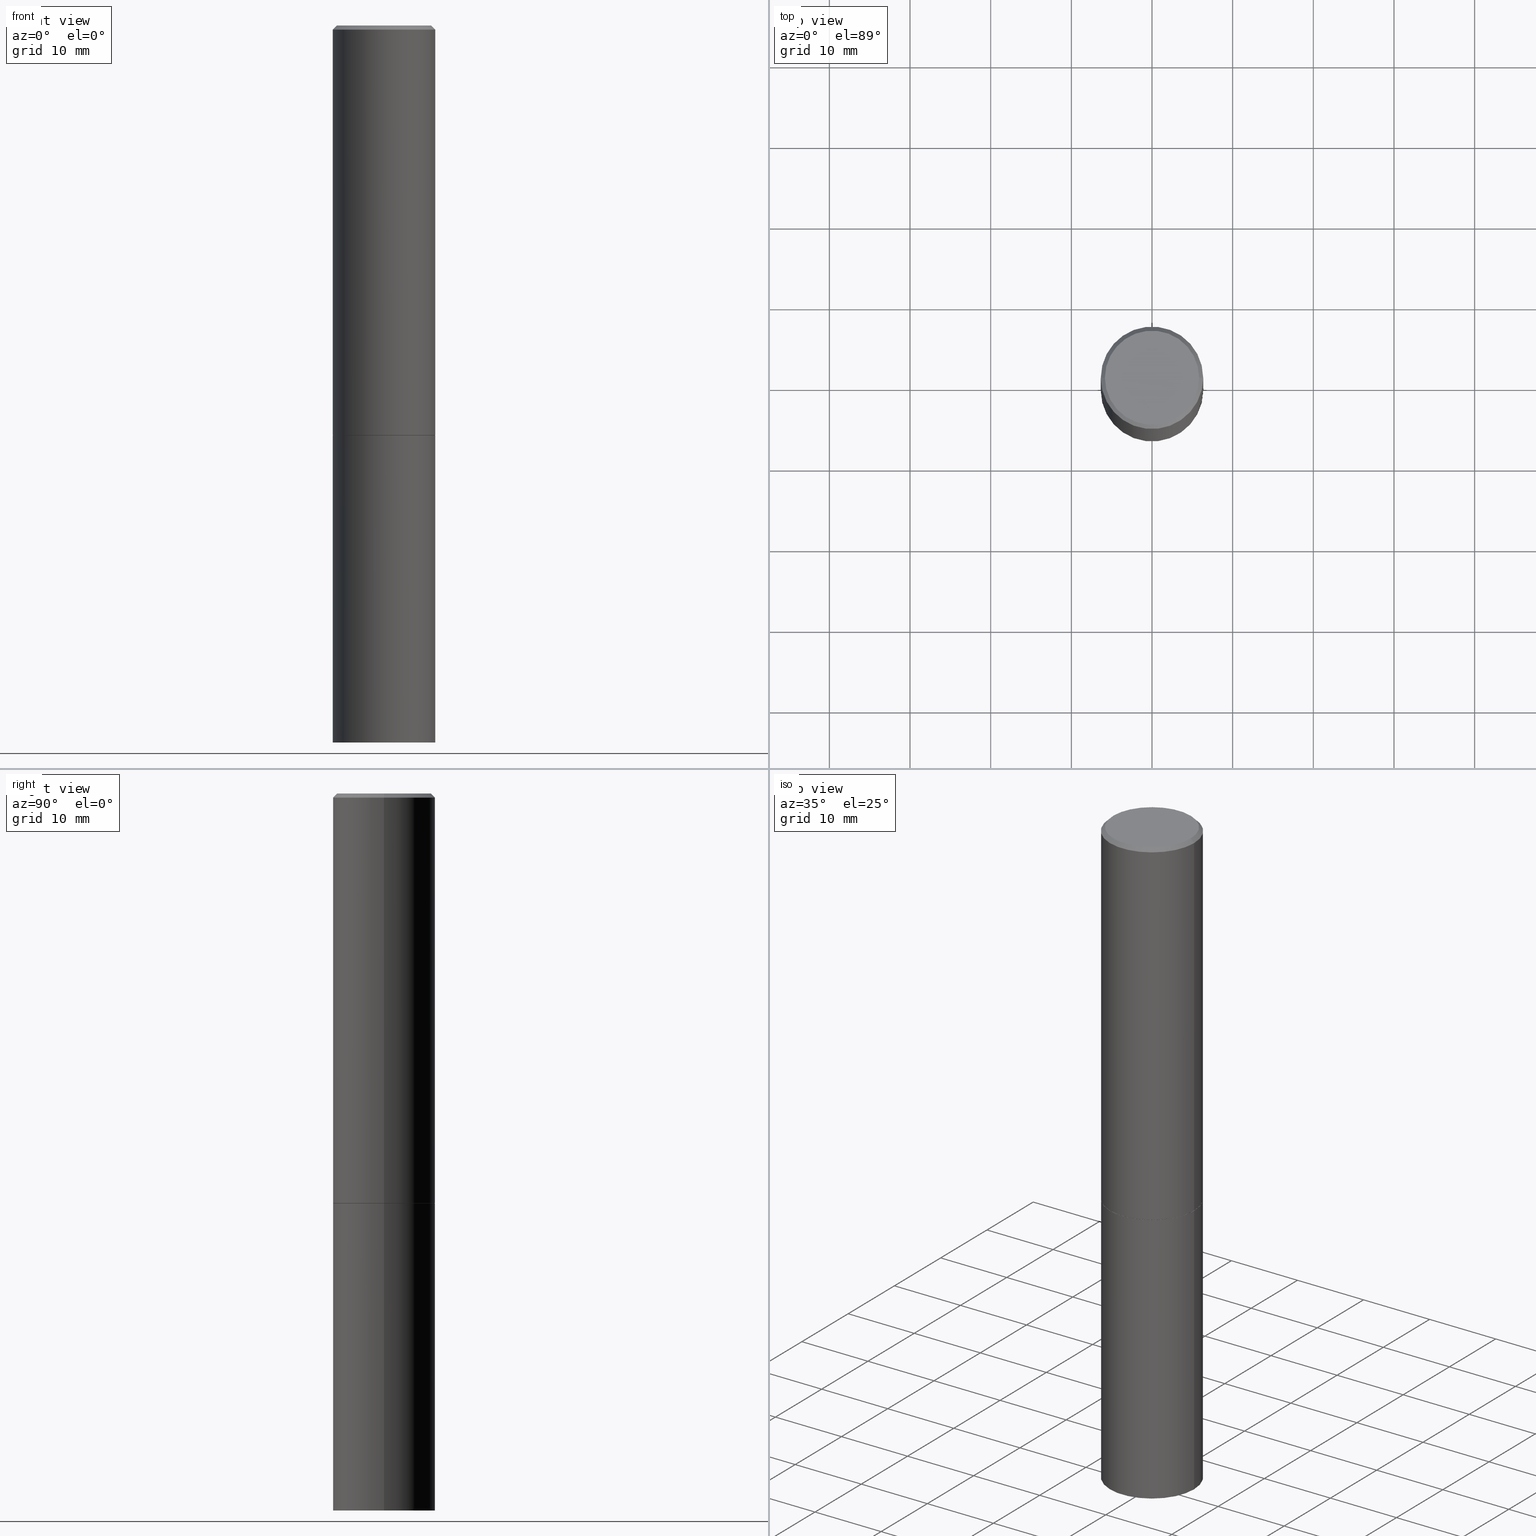
[diagram: canonical four-view strip — front | top / right | iso, engineering-drawing reading convention]
A machine part, canonical four-view strip (front | top / right | iso — engineering-drawing reading convention). The complete STEP part file that produces these views, byte-faithful:
ISO-10303-21;
HEADER;
FILE_DESCRIPTION (( 'STEP AP203' ),
    '1' );
FILE_NAME ('72976.STEP',
    '2024-02-29T06:10:43',
    ( '' ),
    ( '' ),
    'SwSTEP 2.0',
    'SolidWorks 2023',
    '' );
FILE_SCHEMA (( 'CONFIG_CONTROL_DESIGN' ));
ENDSEC;

DATA;
#1 = CARTESIAN_POINT ( 'NONE',  ( 4.888492143564087030E-29, -6.979471196347446580E-15, -1.998999999999999666 ) ) ;
#2 = AXIS2_PLACEMENT_3D ( 'NONE', #68, #78, #15 ) ;
#3 = DIRECTION ( 'NONE',  ( 2.438088387897960049E-29, -3.491481338843145188E-15, -1.000000000000000000 ) ) ;
#4 = APPROVAL ( #194, 'UNSPECIFIED' ) ;
#5 = PLANE ( 'NONE',  #163 ) ;
#6 = ORIENTED_EDGE ( 'NONE', *, *, #35, .F. ) ;
#7 = CIRCLE ( 'NONE', #300, 0.2500000000000000000 ) ;
#8 = PLANE ( 'NONE',  #197 ) ;
#9 = ORIENTED_EDGE ( 'NONE', *, *, #225, .T. ) ;
#10 = DIRECTION ( 'NONE',  ( 1.000000000000000000, -6.982962677686265922E-15, 4.876176775795935793E-29 ) ) ;
#11 = CYLINDRICAL_SURFACE ( 'NONE', #164, 0.2499999999999998890 ) ;
#12 = EDGE_LOOP ( 'NONE', ( #23, #355 ) ) ;
#13 = FACE_OUTER_BOUND ( 'NONE', #148, .T. ) ;
#14 = AXIS2_PLACEMENT_3D ( 'NONE', #268, #319, #177 ) ;
#15 = DIRECTION ( 'NONE',  ( 1.000000000000000000, 0.000000000000000000, 0.000000000000000000 ) ) ;
#16 = FACE_OUTER_BOUND ( 'NONE', #151, .T. ) ;
#17 = COORDINATED_UNIVERSAL_TIME_OFFSET ( 5, 0, .BEHIND. ) ;
#18 = VERTEX_POINT ( 'NONE', #112 ) ;
#19 = COORDINATED_UNIVERSAL_TIME_OFFSET ( 5, 0, .BEHIND. ) ;
#20 = EDGE_LOOP ( 'NONE', ( #139, #33 ) ) ;
#21 = APPROVAL ( #253, 'UNSPECIFIED' ) ;
#22 = PERSON_AND_ORGANIZATION ( #303, #52 ) ;
#23 = ORIENTED_EDGE ( 'NONE', *, *, #66, .T. ) ;
#24 = EDGE_LOOP ( 'NONE', ( #308, #109, #306, #75 ) ) ;
#25 = ADVANCED_FACE ( 'NONE', ( #162 ), #166, .T. ) ;
#26 = DIRECTION ( 'NONE',  ( 1.000000000000000000, -6.982962677686266711E-15, 4.876176775795935793E-29 ) ) ;
#27 = APPROVAL_PERSON_ORGANIZATION ( #332, #61, #74 ) ;
#28 = DIRECTION ( 'NONE',  ( 1.000000000000000000, -6.982962677686266711E-15, 0.000000000000000000 ) ) ;
#29 = DIRECTION ( 'NONE',  ( -1.000000000000000000, 6.982962677686265922E-15, -4.876176775795935793E-29 ) ) ;
#30 = CARTESIAN_POINT ( 'NONE',  ( 0.2500000000000000000, -8.725211865769012469E-15, -1.998999999999999666 ) ) ;
#31 = CONICAL_SURFACE ( 'NONE', #14, 0.2489999999999999991, 0.7853981633975507526 ) ;
#32 = DIRECTION ( 'NONE',  ( -1.000000000000000000, 6.982962677686265922E-15, -4.876176775795935793E-29 ) ) ;
#33 = ORIENTED_EDGE ( 'NONE', *, *, #130, .F. ) ;
#34 = DIRECTION ( 'NONE',  ( -2.438088387897960049E-29, 3.491481338843145188E-15, 1.000000000000000000 ) ) ;
#35 = EDGE_CURVE ( 'NONE', #155, #82, #338, .T. ) ;
#36 = VERTEX_POINT ( 'NONE', #276 ) ;
#37 = CIRCLE ( 'NONE', #182, 0.2499999999999998057 ) ;
#38 = DIRECTION ( 'NONE',  ( 1.000000000000000000, -6.982962677686266711E-15, 4.876176775795935793E-29 ) ) ;
#39 = APPLICATION_CONTEXT ( 'configuration controlled 3d designs of mechanical parts and assemblies' ) ;
#40 = FACE_OUTER_BOUND ( 'NONE', #360, .T. ) ;
#41 = ORIENTED_EDGE ( 'NONE', *, *, #328, .T. ) ;
#42 = EDGE_CURVE ( 'NONE', #96, #271, #279, .T. ) ;
#43 = LOCAL_TIME ( 1, 10, 43.00000000000000000, #19 ) ;
#44 = CARTESIAN_POINT ( 'NONE',  ( 0.2499999999999998057, -1.784954126219744611E-15, -0.02000000000000003164 ) ) ;
#45 = APPROVAL_ROLE ( '' ) ;
#46 = EDGE_LOOP ( 'NONE', ( #178, #254, #220, #199 ) ) ;
#47 = PERSON_AND_ORGANIZATION_ROLE ( 'design_supplier' ) ;
#48 = ADVANCED_FACE ( 'NONE', ( #16 ), #222, .T. ) ;
#49 = ORIENTED_EDGE ( 'NONE', *, *, #236, .F. ) ;
#50 = APPROVAL_ROLE ( '' ) ;
#51 = ORIENTED_EDGE ( 'NONE', *, *, #111, .T. ) ;
#52 = ORGANIZATION ( 'UNSPECIFIED', 'UNSPECIFIED', '' ) ;
#53 = ORIENTED_EDGE ( 'NONE', *, *, #322, .T. ) ;
#54 = EDGE_CURVE ( 'NONE', #36, #274, #331, .T. ) ;
#55 = LINE ( 'NONE', #87, #330 ) ;
#56 = DIRECTION ( 'NONE',  ( -2.445468806185136877E-29, 3.491481338843145188E-15, 1.000000000000000000 ) ) ;
#57 = AXIS2_PLACEMENT_3D ( 'NONE', #231, #304, #357 ) ;
#58 = AXIS2_PLACEMENT_3D ( 'NONE', #154, #242, #124 ) ;
#59 = DIRECTION ( 'NONE',  ( 1.000000000000000000, -6.982962677686270655E-15, 0.000000000000000000 ) ) ;
#60 = FACE_OUTER_BOUND ( 'NONE', #361, .T. ) ;
#61 = APPROVAL ( #221, 'UNSPECIFIED' ) ;
#62 = DIRECTION ( 'NONE',  ( -2.445468806185136597E-29, 3.491481338843145583E-15, 1.000000000000000000 ) ) ;
#63 = VECTOR ( 'NONE', #333, 39.37007874015748143 ) ;
#64 = AXIS2_PLACEMENT_3D ( 'NONE', #121, #339, #200 ) ;
#65 = CARTESIAN_POINT ( 'NONE',  ( 4.890937612370272073E-29, -6.982962677686288799E-15, -1.999999999999999334 ) ) ;
#66 = EDGE_CURVE ( 'NONE', #215, #86, #270, .T. ) ;
#67 = DIRECTION ( 'NONE',  ( 1.000000000000000000, -6.982962677686266711E-15, 0.000000000000000000 ) ) ;
#68 = CARTESIAN_POINT ( 'NONE',  ( 0.000000000000000000, 0.000000000000000000, 0.000000000000000000 ) ) ;
#69 = CONICAL_SURFACE ( 'NONE', #321, 0.2499999999999998057, 0.7853981633974480570 ) ;
#70 = CIRCLE ( 'NONE', #294, 0.2499999999999998057 ) ;
#71 = APPLICATION_PROTOCOL_DEFINITION ( 'international standard', 'config_control_design', 1994, #363 ) ;
#72 = ORIENTED_EDGE ( 'NONE', *, *, #322, .F. ) ;
#73 = LINE ( 'NONE', #184, #134 ) ;
#74 = APPROVAL_ROLE ( '' ) ;
#75 = ORIENTED_EDGE ( 'NONE', *, *, #105, .F. ) ;
#76 = VECTOR ( 'NONE', #205, 39.37007874015748143 ) ;
#77 = VECTOR ( 'NONE', #56, 39.37007874015748143 ) ;
#78 = DIRECTION ( 'NONE',  ( 0.000000000000000000, 0.000000000000000000, 1.000000000000000000 ) ) ;
#79 = ORIENTED_EDGE ( 'NONE', *, *, #116, .F. ) ;
#80 = EDGE_CURVE ( 'NONE', #36, #96, #256, .T. ) ;
#81 = PERSON_AND_ORGANIZATION_ROLE ( 'creator' ) ;
#82 = VERTEX_POINT ( 'NONE', #283 ) ;
#83 = PERSON_AND_ORGANIZATION ( #303, #52 ) ;
#84 = VERTEX_POINT ( 'NONE', #206 ) ;
#85 = PERSON_AND_ORGANIZATION ( #303, #52 ) ;
#86 = VERTEX_POINT ( 'NONE', #346 ) ;
#87 = CARTESIAN_POINT ( 'NONE',  ( 0.2499999999999998890, -1.745740669421565889E-15, 1.219044193948983388E-29 ) ) ;
#88 = FACE_OUTER_BOUND ( 'NONE', #290, .T. ) ;
#89 = CARTESIAN_POINT ( 'NONE',  ( 0.2299999999999997602, -1.681434332853597631E-15, 4.268512490111905999E-18 ) ) ;
#90 = CIRCLE ( 'NONE', #58, 0.2299999999999997602 ) ;
#91 = CARTESIAN_POINT ( 'NONE',  ( -1.043851414335219820E-46, 1.490343170380447200E-32, 4.268512490100411279E-18 ) ) ;
#92 = DIMENSIONAL_EXPONENTS ( 1.000000000000000000, 0.000000000000000000, 0.000000000000000000, 0.000000000000000000, 0.000000000000000000, 0.000000000000000000, 0.000000000000000000 ) ;
#93 = DIRECTION ( 'NONE',  ( -2.445468806185136597E-29, 3.491481338843145583E-15, 1.000000000000000000 ) ) ;
#94 =( NAMED_UNIT ( * ) SI_UNIT ( $, .STERADIAN. ) SOLID_ANGLE_UNIT ( ) );
#95 = ADVANCED_FACE ( 'NONE', ( #233 ), #282, .T. ) ;
#96 = VERTEX_POINT ( 'NONE', #89 ) ;
#97 =( NAMED_UNIT ( * ) PLANE_ANGLE_UNIT ( ) SI_UNIT ( $, .RADIAN. ) );
#98 = UNCERTAINTY_MEASURE_WITH_UNIT (LENGTH_MEASURE( 1.000000000000000082E-05 ), #347, 'distance_accuracy_value', 'NONE');
#99 = DIRECTION ( 'NONE',  ( -2.445468806185136597E-29, 3.491481338843145583E-15, 1.000000000000000000 ) ) ;
#100 = LOCAL_TIME ( 1, 10, 43.00000000000000000, #17 ) ;
#101 = CARTESIAN_POINT ( 'NONE',  ( 4.890937612370280165E-31, -6.982962677686301470E-17, -0.02000000000000003164 ) ) ;
#102 = PERSON_AND_ORGANIZATION ( #303, #52 ) ;
#103 = COORDINATED_UNIVERSAL_TIME_OFFSET ( 5, 0, .BEHIND. ) ;
#104 = ORIENTED_EDGE ( 'NONE', *, *, #176, .T. ) ;
#105 = EDGE_CURVE ( 'NONE', #155, #271, #55, .T. ) ;
#106 = AXIS2_PLACEMENT_3D ( 'NONE', #207, #202, #59 ) ;
#107 = COORDINATED_UNIVERSAL_TIME_OFFSET ( 5, 0, .BEHIND. ) ;
#108 = ORIENTED_EDGE ( 'NONE', *, *, #208, .T. ) ;
#109 = ORIENTED_EDGE ( 'NONE', *, *, #212, .T. ) ;
#110 = ORIENTED_EDGE ( 'NONE', *, *, #341, .F. ) ;
#111 = EDGE_CURVE ( 'NONE', #18, #155, #237, .T. ) ;
#112 = CARTESIAN_POINT ( 'NONE',  ( 0.2489999999999999991, -8.721720384430169462E-15, -1.999999999999999334 ) ) ;
#113 = CONICAL_SURFACE ( 'NONE', #123, 0.2489999999999999991, 0.7853981633975507526 ) ;
#114 = DIRECTION ( 'NONE',  ( 1.000000000000000000, -6.982962677686266711E-15, 0.000000000000000000 ) ) ;
#115 = DIRECTION ( 'NONE',  ( 1.000000000000000000, -6.982962677686266711E-15, 0.000000000000000000 ) ) ;
#116 = EDGE_CURVE ( 'NONE', #327, #215, #169, .T. ) ;
#117 = CYLINDRICAL_SURFACE ( 'NONE', #234, 0.2499999999999998890 ) ;
#118 = AXIS2_PLACEMENT_3D ( 'NONE', #173, #174, #32 ) ;
#119 = LOCAL_TIME ( 1, 10, 43.00000000000000000, #107 ) ;
#120 = DIRECTION ( 'NONE',  ( -1.000000000000000000, 6.982962677686266711E-15, 0.000000000000000000 ) ) ;
#121 = CARTESIAN_POINT ( 'NONE',  ( 8.559140821647976968E-29, -1.222018468595100934E-14, -3.500000000000000000 ) ) ;
#122 = VECTOR ( 'NONE', #315, 39.37007874015748143 ) ;
#123 = AXIS2_PLACEMENT_3D ( 'NONE', #352, #153, #291 ) ;
#124 = DIRECTION ( 'NONE',  ( 1.000000000000000000, -6.982962677686267499E-15, 4.876225828469313926E-29 ) ) ;
#125 = LENGTH_MEASURE_WITH_UNIT ( LENGTH_MEASURE( 0.02539999999999999897 ), #238 );
#126 = CC_DESIGN_DATE_AND_TIME_ASSIGNMENT ( #245, #305, ( #152 ) ) ;
#127 = DIRECTION ( 'NONE',  ( 1.000000000000000000, -6.982962677686266711E-15, 0.000000000000000000 ) ) ;
#128 = APPROVAL_PERSON_ORGANIZATION ( #198, #21, #45 ) ;
#129 = DATE_AND_TIME ( #132, #204 ) ;
#130 = EDGE_CURVE ( 'NONE', #191, #327, #170, .T. ) ;
#131 = DIRECTION ( 'NONE',  ( -2.445468806185136597E-29, 3.491481338843145583E-15, 1.000000000000000000 ) ) ;
#132 = CALENDAR_DATE ( 2024, 29, 2 ) ;
#133 = ORIENTED_EDGE ( 'NONE', *, *, #225, .F. ) ;
#134 = VECTOR ( 'NONE', #239, 39.37007874015748143 ) ;
#135 = COORDINATED_UNIVERSAL_TIME_OFFSET ( 5, 0, .BEHIND. ) ;
#136 = EDGE_LOOP ( 'NONE', ( #298, #108, #51, #133 ) ) ;
#137 = ORIENTED_EDGE ( 'NONE', *, *, #54, .F. ) ;
#138 = CC_DESIGN_DATE_AND_TIME_ASSIGNMENT ( #244, #192, ( #261 ) ) ;
#139 = ORIENTED_EDGE ( 'NONE', *, *, #201, .F. ) ;
#140 =( GEOMETRIC_REPRESENTATION_CONTEXT ( 3 ) GLOBAL_UNCERTAINTY_ASSIGNED_CONTEXT ( ( #98 ) ) GLOBAL_UNIT_ASSIGNED_CONTEXT ( ( #347, #97, #94 ) ) REPRESENTATION_CONTEXT ( 'NONE', 'WORKASPACE' ) );
#141 = CARTESIAN_POINT ( 'NONE',  ( -0.2489999999999999991, -5.213711265643639342E-15, -1.999999999999999334 ) ) ;
#142 = CARTESIAN_POINT ( 'NONE',  ( 1.745740669421615390E-15, 0.2499999999999930334, -2.000000000000000444 ) ) ;
#143 = ADVANCED_FACE ( 'NONE', ( #60 ), #366, .F. ) ;
#144 = CARTESIAN_POINT ( 'NONE',  ( -0.2499999999999998890, 1.776356839400249676E-15, -1.229733772563726025E-29 ) ) ;
#145 = DIRECTION ( 'NONE',  ( -1.000000000000000000, 6.982962677686266711E-15, 0.000000000000000000 ) ) ;
#146 = CC_DESIGN_SECURITY_CLASSIFICATION ( #261, ( #364 ) ) ;
#147 = LINE ( 'NONE', #141, #249 ) ;
#148 = EDGE_LOOP ( 'NONE', ( #110, #255 ) ) ;
#149 = AXIS2_PLACEMENT_3D ( 'NONE', #91, #62, #340 ) ;
#150 = AXIS2_PLACEMENT_3D ( 'NONE', #365, #232, #28 ) ;
#151 = EDGE_LOOP ( 'NONE', ( #280, #53, #158, #79 ) ) ;
#152 = PRODUCT_DEFINITION ( 'UNKNOWN', '', #364, #292 ) ;
#153 = DIRECTION ( 'NONE',  ( -2.445468806185136597E-29, 3.491481338843145583E-15, 1.000000000000000000 ) ) ;
#154 = CARTESIAN_POINT ( 'NONE',  ( -1.043851414335219820E-46, 1.490343170380447200E-32, 4.268512490100411279E-18 ) ) ;
#155 = VERTEX_POINT ( 'NONE', #30 ) ;
#156 = CC_DESIGN_APPROVAL ( #21, ( #152 ) ) ;
#157 = ADVANCED_FACE ( 'NONE', ( #88 ), #117, .T. ) ;
#158 = ORIENTED_EDGE ( 'NONE', *, *, #66, .F. ) ;
#159 = SECURITY_CLASSIFICATION_LEVEL ( 'unclassified' ) ;
#160 = CARTESIAN_POINT ( 'NONE',  ( 4.890937612370272633E-29, -6.982962677686290376E-15, -1.999999999999999778 ) ) ;
#161 = MECHANICAL_CONTEXT ( 'NONE', #363, 'mechanical' ) ;
#162 = FACE_OUTER_BOUND ( 'NONE', #20, .T. ) ;
#163 = AXIS2_PLACEMENT_3D ( 'NONE', #142, #3, #29 ) ;
#164 = AXIS2_PLACEMENT_3D ( 'NONE', #211, #349, #38 ) ;
#165 = PERSON_AND_ORGANIZATION_ROLE ( 'design_owner' ) ;
#166 = PLANE ( 'NONE',  #344 ) ;
#167 = CC_DESIGN_PERSON_AND_ORGANIZATION_ASSIGNMENT ( #22, #272, ( #261 ) ) ;
#168 = EDGE_LOOP ( 'NONE', ( #310, #104, #6, #295 ) ) ;
#169 = LINE ( 'NONE', #286, #122 ) ;
#170 = CIRCLE ( 'NONE', #106, 0.2500000000000000000 ) ;
#171 = ADVANCED_FACE ( 'NONE', ( #259 ), #69, .T. ) ;
#172 = DIRECTION ( 'NONE',  ( -2.445468806185136597E-29, 3.491481338843145583E-15, 1.000000000000000000 ) ) ;
#173 = CARTESIAN_POINT ( 'NONE',  ( 1.606081415867839490E-15, 0.2299999999999997602, -8.009064516888724897E-16 ) ) ;
#174 = DIRECTION ( 'NONE',  ( 2.438088387897960049E-29, -3.491481338843145188E-15, -1.000000000000000000 ) ) ;
#175 = DIRECTION ( 'NONE',  ( -2.445468806185136877E-29, 3.491481338843145188E-15, 1.000000000000000000 ) ) ;
#176 = EDGE_CURVE ( 'NONE', #84, #82, #147, .T. ) ;
#177 = DIRECTION ( 'NONE',  ( 1.000000000000000000, -6.982962677686266711E-15, 0.000000000000000000 ) ) ;
#178 = ORIENTED_EDGE ( 'NONE', *, *, #42, .F. ) ;
#179 = CARTESIAN_POINT ( 'NONE',  ( 0.2500000000000000000, -1.396592535537257602E-14, -3.500000000000000000 ) ) ;
#180 = CARTESIAN_POINT ( 'NONE',  ( 0.2499999999999998057, -1.784954126219744611E-15, -0.02000000000000003164 ) ) ;
#181 = ADVANCED_FACE ( 'NONE', ( #263 ), #5, .F. ) ;
#182 = AXIS2_PLACEMENT_3D ( 'NONE', #318, #293, #187 ) ;
#183 = MANIFOLD_SOLID_BREP ( 'Body-Move/Copy2[2]', #277 ) ;
#184 = CARTESIAN_POINT ( 'NONE',  ( -0.2500000000000000000, 1.776356839400250465E-15, -1.229733772563726445E-29 ) ) ;
#185 = ORIENTED_EDGE ( 'NONE', *, *, #80, .T. ) ;
#186 = MANIFOLD_SOLID_BREP ( 'Body-Move/Copy2[1]', #229 ) ;
#187 = DIRECTION ( 'NONE',  ( 1.000000000000000000, -6.982962677686266711E-15, 0.000000000000000000 ) ) ;
#188 = CARTESIAN_POINT ( 'NONE',  ( 0.000000000000000000, 0.000000000000000000, 0.000000000000000000 ) ) ;
#189 = VECTOR ( 'NONE', #354, 39.37007874015748143 ) ;
#190 = DATE_AND_TIME ( #227, #119 ) ;
#191 = VERTEX_POINT ( 'NONE', #258 ) ;
#192 = DATE_TIME_ROLE ( 'classification_date' ) ;
#193 = ORIENTED_EDGE ( 'NONE', *, *, #105, .T. ) ;
#194 = APPROVAL_STATUS ( 'not_yet_approved' ) ;
#195 = CC_DESIGN_PERSON_AND_ORGANIZATION_ASSIGNMENT ( #85, #329, ( #152 ) ) ;
#196 = ORIENTED_EDGE ( 'NONE', *, *, #314, .F. ) ;
#197 = AXIS2_PLACEMENT_3D ( 'NONE', #65, #34, #10 ) ;
#198 = PERSON_AND_ORGANIZATION ( #303, #52 ) ;
#199 = ORIENTED_EDGE ( 'NONE', *, *, #314, .T. ) ;
#200 = DIRECTION ( 'NONE',  ( 1.000000000000000000, -6.982962677686270655E-15, 0.000000000000000000 ) ) ;
#201 = EDGE_CURVE ( 'NONE', #327, #191, #217, .T. ) ;
#202 = DIRECTION ( 'NONE',  ( -2.445468806185136597E-29, 3.491481338843145583E-15, 1.000000000000000000 ) ) ;
#203 = PRODUCT_DEFINITION_SHAPE ( 'NONE', 'NONE',  #152 ) ;
#204 = LOCAL_TIME ( 1, 10, 43.00000000000000000, #135 ) ;
#205 = DIRECTION ( 'NONE',  ( 0.7071067811866199593, -2.468850131083015945E-15, 0.7071067811864750752 ) ) ;
#206 = CARTESIAN_POINT ( 'NONE',  ( -0.2489999999999999991, -5.208412811295418518E-15, -1.999999999999999334 ) ) ;
#207 = CARTESIAN_POINT ( 'NONE',  ( 8.559140821647976968E-29, -1.222018468595100934E-14, -3.500000000000000000 ) ) ;
#208 = EDGE_CURVE ( 'NONE', #84, #18, #230, .T. ) ;
#209 = FACE_OUTER_BOUND ( 'NONE', #136, .T. ) ;
#210 = CC_DESIGN_APPROVAL ( #61, ( #364 ) ) ;
#211 = CARTESIAN_POINT ( 'NONE',  ( 0.000000000000000000, 0.000000000000000000, 0.000000000000000000 ) ) ;
#212 = EDGE_CURVE ( 'NONE', #82, #274, #313, .T. ) ;
#213 = CARTESIAN_POINT ( 'NONE',  ( 0.000000000000000000, 0.000000000000000000, 0.000000000000000000 ) ) ;
#214 = DIRECTION ( 'NONE',  ( -2.445468806185136597E-29, 3.491481338843145583E-15, 1.000000000000000000 ) ) ;
#215 = VERTEX_POINT ( 'NONE', #260 ) ;
#216 = AXIS2_PLACEMENT_3D ( 'NONE', #160, #93, #114 ) ;
#217 = CIRCLE ( 'NONE', #64, 0.2500000000000000000 ) ;
#218 = DIRECTION ( 'NONE',  ( -2.445468806185136597E-29, 3.491481338843145583E-15, 1.000000000000000000 ) ) ;
#219 = CALENDAR_DATE ( 2024, 29, 2 ) ;
#220 = ORIENTED_EDGE ( 'NONE', *, *, #54, .T. ) ;
#221 = APPROVAL_STATUS ( 'not_yet_approved' ) ;
#222 = CYLINDRICAL_SURFACE ( 'NONE', #362, 0.2500000000000000000 ) ;
#223 = CALENDAR_DATE ( 2024, 29, 2 ) ;
#224 = CARTESIAN_POINT ( 'NONE',  ( 1.745740669421652072E-15, 0.2499999999999877598, -3.500000000000000888 ) ) ;
#225 = EDGE_CURVE ( 'NONE', #82, #155, #7, .T. ) ;
#226 = DIRECTION ( 'NONE',  ( 2.438088387897960049E-29, -3.491481338843145188E-15, -1.000000000000000000 ) ) ;
#227 = CALENDAR_DATE ( 2024, 29, 2 ) ;
#228 = ORIENTED_EDGE ( 'NONE', *, *, #42, .T. ) ;
#229 = CLOSED_SHELL ( 'NONE', ( #48, #25, #181, #250 ) ) ;
#230 = CIRCLE ( 'NONE', #150, 0.2489999999999999991 ) ;
#231 = CARTESIAN_POINT ( 'NONE',  ( 4.888492143564087030E-29, -6.979471196347446580E-15, -1.998999999999999666 ) ) ;
#232 = DIRECTION ( 'NONE',  ( -2.445468806185136597E-29, 3.491481338843145583E-15, 1.000000000000000000 ) ) ;
#233 = FACE_OUTER_BOUND ( 'NONE', #46, .T. ) ;
#234 = AXIS2_PLACEMENT_3D ( 'NONE', #284, #342, #26 ) ;
#235 = CARTESIAN_POINT ( 'NONE',  ( 4.890937612370272633E-29, -6.982962677686290376E-15, -1.999999999999999778 ) ) ;
#236 = EDGE_CURVE ( 'NONE', #86, #215, #301, .T. ) ;
#237 = LINE ( 'NONE', #316, #76 ) ;
#238 =( LENGTH_UNIT ( ) NAMED_UNIT ( * ) SI_UNIT ( $, .METRE. ) );
#239 = DIRECTION ( 'NONE',  ( -2.445468806185136877E-29, 3.491481338843145188E-15, 1.000000000000000000 ) ) ;
#240 = CC_DESIGN_APPROVAL ( #4, ( #261 ) ) ;
#241 = ADVANCED_FACE ( 'NONE', ( #264 ), #31, .T. ) ;
#242 = DIRECTION ( 'NONE',  ( -2.445468806185136597E-29, 3.491481338843145583E-15, 1.000000000000000000 ) ) ;
#243 = LOCAL_TIME ( 1, 10, 43.00000000000000000, #103 ) ;
#244 = DATE_AND_TIME ( #219, #100 ) ;
#245 = DATE_AND_TIME ( #247, #243 ) ;
#246 = CARTESIAN_POINT ( 'NONE',  ( -0.2499999999999998057, 1.675911042644702196E-15, -0.02000000000000003164 ) ) ;
#247 = CALENDAR_DATE ( 2024, 29, 2 ) ;
#248 = ORIENTED_EDGE ( 'NONE', *, *, #285, .F. ) ;
#249 = VECTOR ( 'NONE', #262, 39.37007874015748143 ) ;
#250 = ADVANCED_FACE ( 'NONE', ( #40 ), #266, .T. ) ;
#251 = APPROVAL_DATE_TIME ( #307, #4 ) ;
#252 = ORIENTED_EDGE ( 'NONE', *, *, #285, .T. ) ;
#253 = APPROVAL_STATUS ( 'not_yet_approved' ) ;
#254 = ORIENTED_EDGE ( 'NONE', *, *, #80, .F. ) ;
#255 = ORIENTED_EDGE ( 'NONE', *, *, #208, .F. ) ;
#256 = CIRCLE ( 'NONE', #149, 0.2299999999999997602 ) ;
#257 = AXIS2_PLACEMENT_3D ( 'NONE', #235, #345, #67 ) ;
#258 = CARTESIAN_POINT ( 'NONE',  ( -0.2500000000000000000, -7.825216842418397817E-15, -3.500000000000000000 ) ) ;
#259 = FACE_OUTER_BOUND ( 'NONE', #324, .T. ) ;
#260 = CARTESIAN_POINT ( 'NONE',  ( 0.2500000000000000000, -8.728703347107857054E-15, -1.999999999999999778 ) ) ;
#261 = SECURITY_CLASSIFICATION ( '', '', #159 ) ;
#262 = DIRECTION ( 'NONE',  ( -0.7071067811866199593, 7.493145998870616062E-15, 0.7071067811864750752 ) ) ;
#263 = FACE_OUTER_BOUND ( 'NONE', #12, .T. ) ;
#264 = FACE_OUTER_BOUND ( 'NONE', #168, .T. ) ;
#265 = AXIS2_PLACEMENT_3D ( 'NONE', #288, #312, #120 ) ;
#266 = CYLINDRICAL_SURFACE ( 'NONE', #323, 0.2500000000000000000 ) ;
#267 = ORIENTED_EDGE ( 'NONE', *, *, #116, .T. ) ;
#268 = CARTESIAN_POINT ( 'NONE',  ( 4.890937612370272073E-29, -6.982962677686288799E-15, -1.999999999999999334 ) ) ;
#269 = CARTESIAN_POINT ( 'NONE',  ( 4.890937612370272073E-29, -6.982962677686288799E-15, -1.999999999999999334 ) ) ;
#270 = CIRCLE ( 'NONE', #216, 0.2500000000000000000 ) ;
#271 = VERTEX_POINT ( 'NONE', #180 ) ;
#272 = PERSON_AND_ORGANIZATION_ROLE ( 'classification_officer' ) ;
#273 = ADVANCED_FACE ( 'NONE', ( #209 ), #113, .T. ) ;
#274 = VERTEX_POINT ( 'NONE', #351 ) ;
#275 = APPLICATION_PROTOCOL_DEFINITION ( 'international standard', 'config_control_design', 1994, #39 ) ;
#276 = CARTESIAN_POINT ( 'NONE',  ( -0.2299999999999997602, 1.640996229256270941E-15, 4.268512490089056766E-18 ) ) ;
#277 = CLOSED_SHELL ( 'NONE', ( #241, #289, #171, #95, #157, #273, #350, #143 ) ) ;
#278 = CIRCLE ( 'NONE', #353, 0.2489999999999999991 ) ;
#279 = LINE ( 'NONE', #44, #63 ) ;
#280 = ORIENTED_EDGE ( 'NONE', *, *, #201, .T. ) ;
#281 = DIRECTION ( 'NONE',  ( 2.445468806185136597E-29, -3.491481338843145583E-15, -1.000000000000000000 ) ) ;
#282 = CONICAL_SURFACE ( 'NONE', #265, 0.2499999999999998057, 0.7853981633974480570 ) ;
#283 = CARTESIAN_POINT ( 'NONE',  ( -0.2500000000000000000, -1.748293572161903489E-15, -1.998999999999999666 ) ) ;
#284 = CARTESIAN_POINT ( 'NONE',  ( 0.000000000000000000, 0.000000000000000000, 0.000000000000000000 ) ) ;
#285 = EDGE_CURVE ( 'NONE', #96, #36, #90, .T. ) ;
#286 = CARTESIAN_POINT ( 'NONE',  ( 0.2500000000000000000, -1.745740669421566678E-15, 1.219044193948983948E-29 ) ) ;
#287 = PRODUCT ( '72976', '72976', '', ( #161 ) ) ;
#288 = CARTESIAN_POINT ( 'NONE',  ( 4.890937612370280165E-31, -6.982962677686301470E-17, -0.02000000000000003164 ) ) ;
#289 = ADVANCED_FACE ( 'NONE', ( #325 ), #11, .T. ) ;
#290 = EDGE_LOOP ( 'NONE', ( #337, #9, #193, #196 ) ) ;
#291 = DIRECTION ( 'NONE',  ( 1.000000000000000000, -6.982962677686266711E-15, 0.000000000000000000 ) ) ;
#292 = DESIGN_CONTEXT ( 'detailed design', #39, 'design' ) ;
#293 = DIRECTION ( 'NONE',  ( -2.445468806185136597E-29, 3.491481338843145583E-15, 1.000000000000000000 ) ) ;
#294 = AXIS2_PLACEMENT_3D ( 'NONE', #101, #218, #127 ) ;
#295 = ORIENTED_EDGE ( 'NONE', *, *, #111, .F. ) ;
#296 = CC_DESIGN_PERSON_AND_ORGANIZATION_ASSIGNMENT ( #102, #81, ( #364 ) ) ;
#297 = DIRECTION ( 'NONE',  ( 1.000000000000000000, -6.982962677686266711E-15, 4.876176775795935793E-29 ) ) ;
#298 = ORIENTED_EDGE ( 'NONE', *, *, #176, .F. ) ;
#299 = DIRECTION ( 'NONE',  ( 1.000000000000000000, -6.982962677686266711E-15, 4.876176775795935793E-29 ) ) ;
#300 = AXIS2_PLACEMENT_3D ( 'NONE', #1, #172, #115 ) ;
#301 = CIRCLE ( 'NONE', #257, 0.2500000000000000000 ) ;
#302 = APPROVAL_DATE_TIME ( #129, #21 ) ;
#303 = PERSON ( 'UNSPECIFIED', 'UNSPECIFIED', 'UNSPECIFIED', ('UNSPECIFIED'), ('UNSPECIFIED'), ('UNSPECIFIED') ) ;
#304 = DIRECTION ( 'NONE',  ( -2.445468806185136597E-29, 3.491481338843145583E-15, 1.000000000000000000 ) ) ;
#305 = DATE_TIME_ROLE ( 'creation_date' ) ;
#306 = ORIENTED_EDGE ( 'NONE', *, *, #328, .F. ) ;
#307 = DATE_AND_TIME ( #223, #43 ) ;
#308 = ORIENTED_EDGE ( 'NONE', *, *, #35, .T. ) ;
#309 = APPROVAL_PERSON_ORGANIZATION ( #326, #4, #50 ) ;
#310 = ORIENTED_EDGE ( 'NONE', *, *, #341, .T. ) ;
#311 = PRODUCT_RELATED_PRODUCT_CATEGORY ( 'detail', '', ( #287 ) ) ;
#312 = DIRECTION ( 'NONE',  ( 2.445468806185136597E-29, -3.491481338843145583E-15, -1.000000000000000000 ) ) ;
#313 = LINE ( 'NONE', #144, #77 ) ;
#314 = EDGE_CURVE ( 'NONE', #274, #271, #70, .T. ) ;
#315 = DIRECTION ( 'NONE',  ( -2.445468806185136877E-29, 3.491481338843145188E-15, 1.000000000000000000 ) ) ;
#316 = CARTESIAN_POINT ( 'NONE',  ( 0.2489999999999999991, -8.721720384430169462E-15, -1.999999999999999334 ) ) ;
#317 = CARTESIAN_POINT ( 'NONE',  ( 4.890937612370280165E-31, -6.982962677686301470E-17, -0.02000000000000003164 ) ) ;
#318 = CARTESIAN_POINT ( 'NONE',  ( 4.890937612370280165E-31, -6.982962677686301470E-17, -0.02000000000000003164 ) ) ;
#319 = DIRECTION ( 'NONE',  ( -2.445468806185136597E-29, 3.491481338843145583E-15, 1.000000000000000000 ) ) ;
#320 = ORIENTED_EDGE ( 'NONE', *, *, #130, .T. ) ;
#321 = AXIS2_PLACEMENT_3D ( 'NONE', #317, #281, #145 ) ;
#322 = EDGE_CURVE ( 'NONE', #191, #86, #73, .T. ) ;
#323 = AXIS2_PLACEMENT_3D ( 'NONE', #213, #99, #297 ) ;
#324 = EDGE_LOOP ( 'NONE', ( #248, #228, #41, #137 ) ) ;
#325 = FACE_OUTER_BOUND ( 'NONE', #24, .T. ) ;
#326 = PERSON_AND_ORGANIZATION ( #303, #52 ) ;
#327 = VERTEX_POINT ( 'NONE', #179 ) ;
#328 = EDGE_CURVE ( 'NONE', #271, #274, #37, .T. ) ;
#329 = PERSON_AND_ORGANIZATION_ROLE ( 'creator' ) ;
#330 = VECTOR ( 'NONE', #175, 39.37007874015748143 ) ;
#331 = LINE ( 'NONE', #246, #189 ) ;
#332 = PERSON_AND_ORGANIZATION ( #303, #52 ) ;
#333 = DIRECTION ( 'NONE',  ( 0.7071067811865473507, -7.319954787623256045E-15, -0.7071067811865476838 ) ) ;
#334 = DIRECTION ( 'NONE',  ( -1.000000000000000000, 6.982962677686265922E-15, -4.876176775795935793E-29 ) ) ;
#335 = PERSON_AND_ORGANIZATION ( #303, #52 ) ;
#336 = CC_DESIGN_PERSON_AND_ORGANIZATION_ASSIGNMENT ( #83, #165, ( #287 ) ) ;
#337 = ORIENTED_EDGE ( 'NONE', *, *, #212, .F. ) ;
#338 = CIRCLE ( 'NONE', #57, 0.2500000000000000000 ) ;
#339 = DIRECTION ( 'NONE',  ( -2.445468806185136597E-29, 3.491481338843145583E-15, 1.000000000000000000 ) ) ;
#340 = DIRECTION ( 'NONE',  ( 1.000000000000000000, -6.982962677686267499E-15, 4.876225828469313926E-29 ) ) ;
#341 = EDGE_CURVE ( 'NONE', #18, #84, #278, .T. ) ;
#342 = DIRECTION ( 'NONE',  ( -2.445468806185136597E-29, 3.491481338843145583E-15, 1.000000000000000000 ) ) ;
#343 = ADVANCED_BREP_SHAPE_REPRESENTATION ( '72976', ( #186, #183, #2 ), #140 ) ;
#344 = AXIS2_PLACEMENT_3D ( 'NONE', #224, #226, #334 ) ;
#345 = DIRECTION ( 'NONE',  ( -2.445468806185136597E-29, 3.491481338843145583E-15, 1.000000000000000000 ) ) ;
#346 = CARTESIAN_POINT ( 'NONE',  ( -0.2500000000000000000, -7.825216842418397817E-15, -1.999999999999999778 ) ) ;
#347 =( CONVERSION_BASED_UNIT ( 'INCH', #125 ) LENGTH_UNIT ( ) NAMED_UNIT ( #92 ) );
#348 = DIRECTION ( 'NONE',  ( 1.000000000000000000, -6.982962677686266711E-15, 0.000000000000000000 ) ) ;
#349 = DIRECTION ( 'NONE',  ( -2.445468806185136597E-29, 3.491481338843145583E-15, 1.000000000000000000 ) ) ;
#350 = ADVANCED_FACE ( 'NONE', ( #13 ), #8, .F. ) ;
#351 = CARTESIAN_POINT ( 'NONE',  ( -0.2499999999999998057, 1.675911042644702196E-15, -0.02000000000000003164 ) ) ;
#352 = CARTESIAN_POINT ( 'NONE',  ( 4.890937612370272073E-29, -6.982962677686288799E-15, -1.999999999999999334 ) ) ;
#353 = AXIS2_PLACEMENT_3D ( 'NONE', #269, #214, #348 ) ;
#354 = DIRECTION ( 'NONE',  ( -0.7071067811865473507, 2.468850131082255088E-15, -0.7071067811865476838 ) ) ;
#355 = ORIENTED_EDGE ( 'NONE', *, *, #236, .T. ) ;
#356 = SHAPE_DEFINITION_REPRESENTATION ( #203, #343 ) ;
#357 = DIRECTION ( 'NONE',  ( 1.000000000000000000, -6.982962677686266711E-15, 0.000000000000000000 ) ) ;
#358 = CC_DESIGN_PERSON_AND_ORGANIZATION_ASSIGNMENT ( #335, #47, ( #364 ) ) ;
#359 = APPROVAL_DATE_TIME ( #190, #61 ) ;
#360 = EDGE_LOOP ( 'NONE', ( #72, #320, #267, #49 ) ) ;
#361 = EDGE_LOOP ( 'NONE', ( #185, #252 ) ) ;
#362 = AXIS2_PLACEMENT_3D ( 'NONE', #188, #131, #299 ) ;
#363 = APPLICATION_CONTEXT ( 'configuration controlled 3d designs of mechanical parts and assemblies' ) ;
#364 = PRODUCT_DEFINITION_FORMATION_WITH_SPECIFIED_SOURCE ( 'ANY', '', #287, .NOT_KNOWN. ) ;
#365 = CARTESIAN_POINT ( 'NONE',  ( 4.890937612370272073E-29, -6.982962677686288799E-15, -1.999999999999999334 ) ) ;
#366 = PLANE ( 'NONE',  #118 ) ;
ENDSEC;
END-ISO-10303-21;
